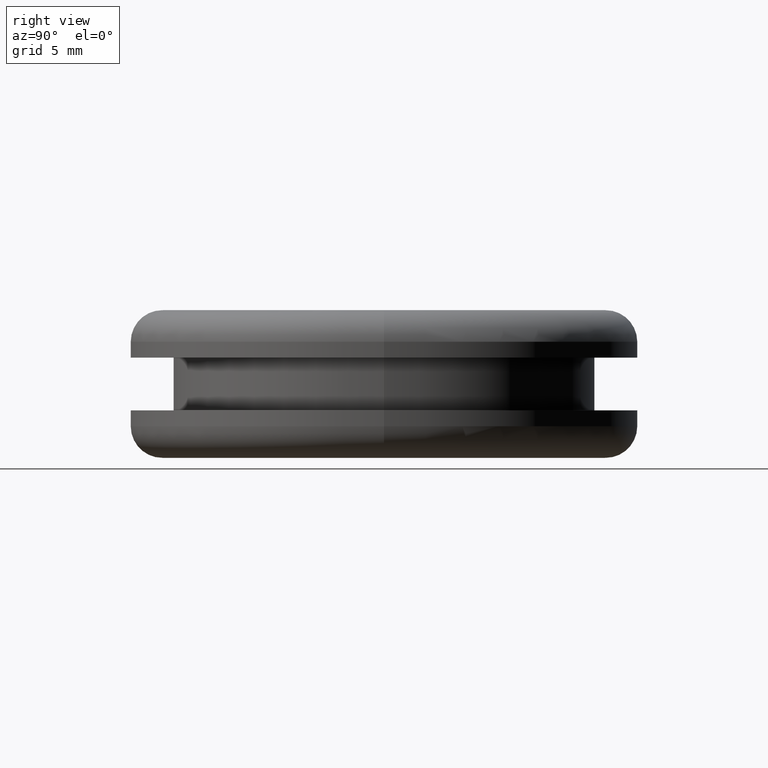
[diagram: clean part render]
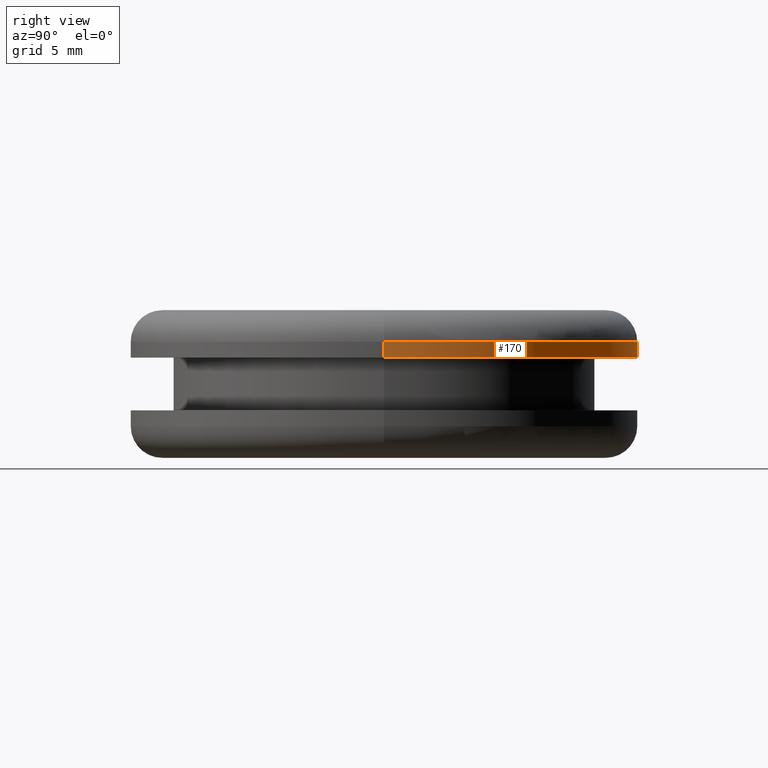
[diagram: same view with one face highlighted and labeled with its STEP entity id]
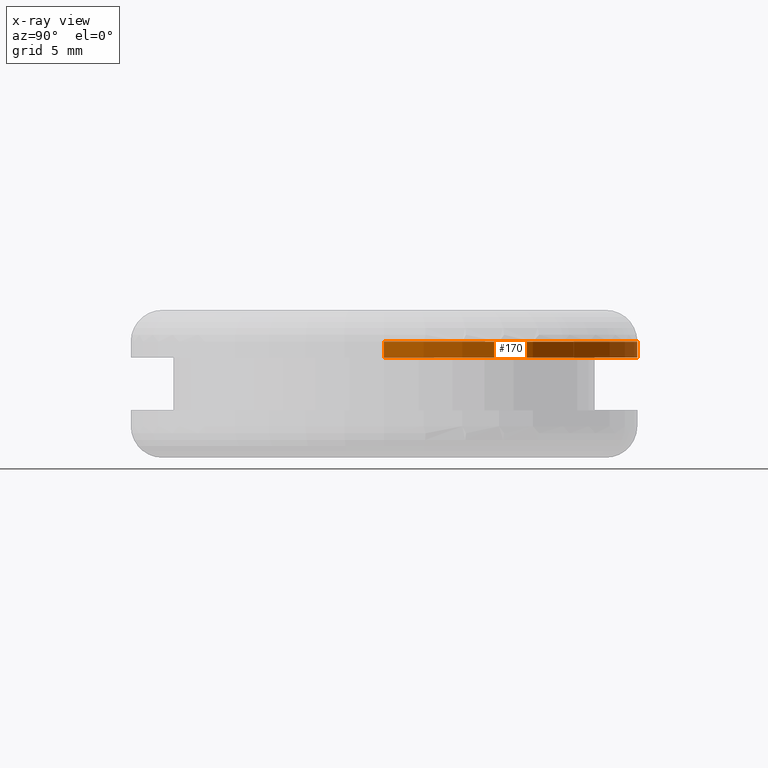
[diagram: x-ray of the same camera — body ghosted, the highlighted face saturated]
A machine part, right view. The second image highlights one B-rep face of the part: STEP entity #170.
The next image is the same camera in x-ray: the body ghosted, the highlighted face saturated — about 0% of this face is hidden behind the body in this view.
In plain terms, the highlighted cylindrical surface (partial cylindrical patch) has radius 12 mm, axis along (0, 0, -1).
Its self-contained STEP definition (entity closure, byte-faithful):
#11 = VECTOR ( 'NONE', #386, 1000.000000000000000 ) ;
#18 = VERTEX_POINT ( 'NONE', #193 ) ;
#25 = CIRCLE ( 'NONE', #333, 12.00000000000990500 ) ;
#34 = CYLINDRICAL_SURFACE ( 'NONE', #236, 12.00000000000990500 ) ;
#45 = EDGE_CURVE ( 'NONE', #411, #86, #186, .T. ) ;
#46 = EDGE_CURVE ( 'NONE', #411, #18, #302, .T. ) ;
#59 = VERTEX_POINT ( 'NONE', #306 ) ;
#68 = DIRECTION ( 'NONE',  ( 0.0000000000000000000, 0.0000000000000000000, -1.000000000000000000 ) ) ;
#71 = CARTESIAN_POINT ( 'NONE',  ( 92.89682171775730500, 0.0000000000000000000, 147.3594493936724100 ) ) ;
#81 = DIRECTION ( 'NONE',  ( -1.000000000000000000, 0.0000000000000000000, 0.0000000000000000000 ) ) ;
#82 = ORIENTED_EDGE ( 'NONE', *, *, #468, .F. ) ;
#86 = VERTEX_POINT ( 'NONE', #259 ) ;
#103 = CARTESIAN_POINT ( 'NONE',  ( 104.8968217177672100, 0.0000000000000000000, 146.6094493936956000 ) ) ;
#114 = ORIENTED_EDGE ( 'NONE', *, *, #46, .T. ) ;
#124 = CARTESIAN_POINT ( 'NONE',  ( 92.89682171775730500, 0.0000000000000000000, 0.0000000000000000000 ) ) ;
#130 = DIRECTION ( 'NONE',  ( -1.000000000000000000, 0.0000000000000000000, 0.0000000000000000000 ) ) ;
#143 = AXIS2_PLACEMENT_3D ( 'NONE', #271, #460, #130 ) ;
#170 = ADVANCED_FACE ( 'NONE', ( #434 ), #34, .T. ) ;
#186 = LINE ( 'NONE', #124, #11 ) ;
#193 = CARTESIAN_POINT ( 'NONE',  ( 116.8968217177771200, 1.469576158978036200E-015, 147.3594493936724100 ) ) ;
#230 = CARTESIAN_POINT ( 'NONE',  ( 104.8968217177672100, 0.0000000000000000000, 0.0000000000000000000 ) ) ;
#234 = EDGE_LOOP ( 'NONE', ( #114, #268, #82, #284 ) ) ;
#236 = AXIS2_PLACEMENT_3D ( 'NONE', #230, #395, #463 ) ;
#259 = CARTESIAN_POINT ( 'NONE',  ( 92.89682171775730500, 0.0000000000000000000, 146.6094493936956000 ) ) ;
#268 = ORIENTED_EDGE ( 'NONE', *, *, #397, .T. ) ;
#271 = CARTESIAN_POINT ( 'NONE',  ( 104.8968217177672100, 0.0000000000000000000, 147.3594493936724100 ) ) ;
#284 = ORIENTED_EDGE ( 'NONE', *, *, #45, .F. ) ;
#302 = CIRCLE ( 'NONE', #143, 12.00000000000990500 ) ;
#306 = CARTESIAN_POINT ( 'NONE',  ( 116.8968217177771200, 1.469576158978035600E-015, 146.6094493936956000 ) ) ;
#333 = AXIS2_PLACEMENT_3D ( 'NONE', #103, #68, #81 ) ;
#344 = LINE ( 'NONE', #367, #444 ) ;
#361 = DIRECTION ( 'NONE',  ( 0.0000000000000000000, 0.0000000000000000000, -1.000000000000000000 ) ) ;
#367 = CARTESIAN_POINT ( 'NONE',  ( 116.8968217177771200, 1.469576158978036200E-015, 0.0000000000000000000 ) ) ;
#386 = DIRECTION ( 'NONE',  ( 0.0000000000000000000, 0.0000000000000000000, -1.000000000000000000 ) ) ;
#395 = DIRECTION ( 'NONE',  ( 0.0000000000000000000, 0.0000000000000000000, -1.000000000000000000 ) ) ;
#397 = EDGE_CURVE ( 'NONE', #18, #59, #344, .T. ) ;
#411 = VERTEX_POINT ( 'NONE', #71 ) ;
#434 = FACE_OUTER_BOUND ( 'NONE', #234, .T. ) ;
#444 = VECTOR ( 'NONE', #361, 1000.000000000000000 ) ;
#460 = DIRECTION ( 'NONE',  ( 0.0000000000000000000, 0.0000000000000000000, -1.000000000000000000 ) ) ;
#463 = DIRECTION ( 'NONE',  ( -1.000000000000000000, 0.0000000000000000000, 0.0000000000000000000 ) ) ;
#468 = EDGE_CURVE ( 'NONE', #86, #59, #25, .T. ) ;